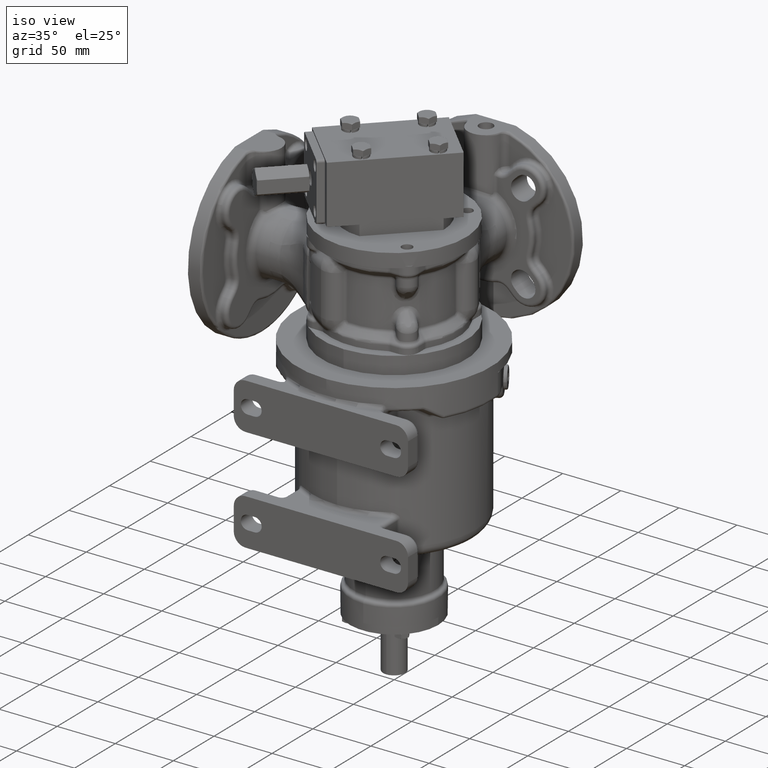
[diagram: clean part render]
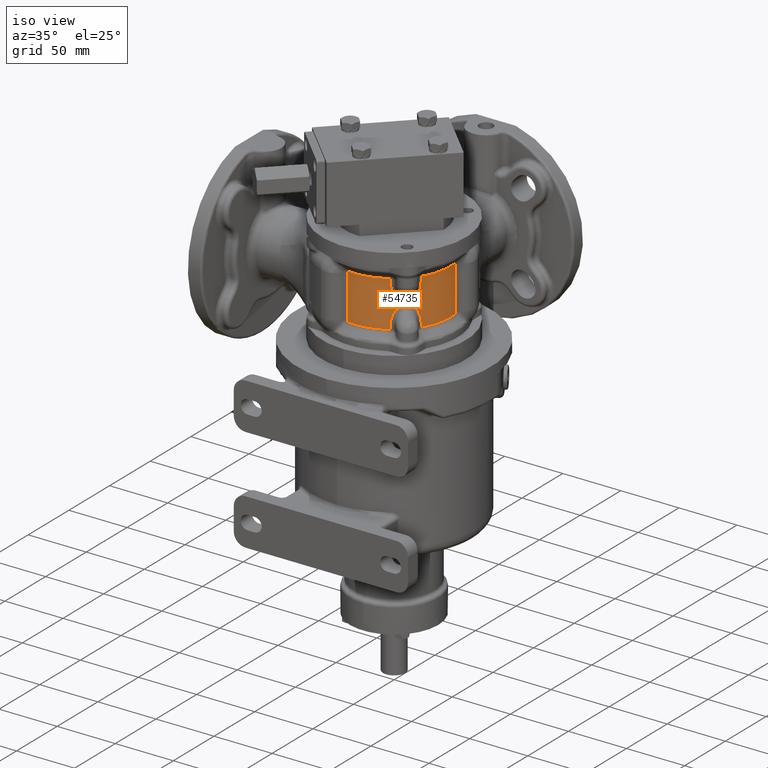
[diagram: same view with one face highlighted and labeled with its STEP entity id]
A machine part, iso view. The second image highlights one B-rep face of the part: STEP entity #54735.
In plain terms, the highlighted cylindrical surface (partial cylindrical patch) has radius 48.5 mm, axis along (0, 0, 1).
Its self-contained STEP definition (entity closure, byte-faithful):
#7593=DIRECTION('',(-2.848150326348E-10,1.366210651883E-10,1.E0));
#7594=VECTOR('',#7593,3.700004648874E1);
#7595=CARTESIAN_POINT('',(-6.274343029930E0,-4.809243818960E1,
1.564999769728E2));
#7596=LINE('',#7595,#7594);
#7597=CARTESIAN_POINT('',(-6.274343040468E0,-4.809243818454E1,
1.935000234615E2));
#7598=CARTESIAN_POINT('',(-6.274343434639E0,-4.809243814360E1,
1.935234164929E2));
#7599=CARTESIAN_POINT('',(-6.274444725868E0,-4.809242506489E1,
1.935701433103E2));
#7600=CARTESIAN_POINT('',(-6.274897230966E0,-4.809236590575E1,
1.936403227666E2));
#7601=CARTESIAN_POINT('',(-6.275394628399E0,-4.809230119169E1,
1.936866346259E2));
#7602=CARTESIAN_POINT('',(-6.275690753971E0,-4.809226256047E1,
1.937097164633E2));
#7604=CARTESIAN_POINT('',(-6.275690753971E0,-4.809226256047E1,
1.937097164633E2));
#7605=CARTESIAN_POINT('',(-6.276178012541E0,-4.809219897680E1,
1.937477024269E2));
#7606=CARTESIAN_POINT('',(-6.274913765812E0,-4.809236382010E1,
1.938212918905E2));
#7607=CARTESIAN_POINT('',(-6.266985414949E0,-4.809339801570E1,
1.939246876681E2));
#7608=CARTESIAN_POINT('',(-6.253731021626E0,-4.809512376490E1,
1.940205849439E2));
#7609=CARTESIAN_POINT('',(-6.235874767842E0,-4.809744275610E1,
1.941088701734E2));
#7610=CARTESIAN_POINT('',(-6.214096438585E0,-4.810026187533E1,
1.941896532592E2));
#7611=CARTESIAN_POINT('',(-6.188998400640E0,-4.810349818535E1,
1.942632430042E2));
#7612=CARTESIAN_POINT('',(-6.161108300931E0,-4.810707881114E1,
1.943300102845E2));
#7613=CARTESIAN_POINT('',(-6.130865068600E0,-4.811094288226E1,
1.943903937344E2));
#7614=CARTESIAN_POINT('',(-6.098626018523E0,-4.811504060554E1,
1.944448438467E2));
#7615=CARTESIAN_POINT('',(-6.064667471575E0,-4.811933309037E1,
1.944938049870E2));
#7616=CARTESIAN_POINT('',(-6.029205523263E0,-4.812378957644E1,
1.945376828935E2));
#7617=CARTESIAN_POINT('',(-5.992399836210E0,-4.812838682880E1,
1.945768497978E2));
#7618=CARTESIAN_POINT('',(-5.954338375685E0,-4.813311085343E1,
1.946116474166E2));
#7619=CARTESIAN_POINT('',(-5.915076939782E0,-4.813795178669E1,
1.946423587458E2));
#7620=CARTESIAN_POINT('',(-5.874613085224E0,-4.814290697518E1,
1.946692293826E2));
#7621=CARTESIAN_POINT('',(-5.832891916712E0,-4.814798000728E1,
1.946924511634E2));
#7622=CARTESIAN_POINT('',(-5.789885508175E0,-4.815317092276E1,
1.947121334603E2));
#7623=CARTESIAN_POINT('',(-5.745548080343E0,-4.815848174638E1,
1.947283375297E2));
#7624=CARTESIAN_POINT('',(-5.699661245201E0,-4.816393463038E1,
1.947411217633E2));
#7625=CARTESIAN_POINT('',(-5.652124219911E0,-4.816953686112E1,
1.947504145396E2));
#7626=CARTESIAN_POINT('',(-5.603045415015E0,-4.817527082022E1,
1.947560775495E2));
#7627=CARTESIAN_POINT('',(-5.569433165751E0,-4.817916259527E1,
1.947573590433E2));
#7628=CARTESIAN_POINT('',(-5.552392439036E0,-4.818112636918E1,
1.947573591672E2));
#7630=CARTESIAN_POINT('',(0.E0,-1.679623939384E-14,1.947573593129E2));
#7631=DIRECTION('',(0.E0,0.E0,1.E0));
#7632=DIRECTION('',(-1.144823183306E-1,-9.934252859625E-1,0.E0));
#7633=AXIS2_PLACEMENT_3D('',#7630,#7631,#7632);
#7635=CARTESIAN_POINT('',(2.545965498391E1,-4.128021279137E1,1.947573592865E2));
#7636=CARTESIAN_POINT('',(2.547614764940E1,-4.127004090643E1,1.947573592826E2));
#7637=CARTESIAN_POINT('',(2.550937940360E1,-4.124951789783E1,1.947564723350E2));
#7638=CARTESIAN_POINT('',(2.556003047431E1,-4.121815184109E1,1.947523899943E2));
#7639=CARTESIAN_POINT('',(2.559420020860E1,-4.119693344950E1,1.947477906430E2));
#7640=CARTESIAN_POINT('',(2.561139445780E1,-4.118624131827E1,1.947450084340E2));
#7642=DIRECTION('',(-5.588375425731E-8,-7.049448077059E-8,-1.E0));
#7643=VECTOR('',#7642,3.950551257222E0);
#7644=CARTESIAN_POINT('',(2.561139445780E1,-4.118624131827E1,1.947450084340E2));
#7645=LINE('',#7644,#7643);
#7646=CARTESIAN_POINT('',(2.561139423703E1,-4.118624159676E1,1.907944571768E2));
#7647=CARTESIAN_POINT('',(2.561139421181E1,-4.118624159706E1,1.907341618462E2));
#7648=CARTESIAN_POINT('',(2.561213257774E1,-4.118578227763E1,1.906136386817E2));
#7649=CARTESIAN_POINT('',(2.561545445615E1,-4.118371648193E1,1.904330338751E2));
#7650=CARTESIAN_POINT('',(2.561914153475E1,-4.118142291603E1,1.903127957322E2));
#7651=CARTESIAN_POINT('',(2.562135280985E1,-4.118004711256E1,1.902527141374E2));
#7653=CARTESIAN_POINT('',(2.562135280985E1,-4.118004711256E1,1.902527141374E2));
#7654=CARTESIAN_POINT('',(2.562990374478E1,-4.117472697665E1,1.900203918733E2));
#7655=CARTESIAN_POINT('',(2.565337548488E1,-4.116011684578E1,1.895594212240E2));
#7656=CARTESIAN_POINT('',(2.570727333933E1,-4.112648676577E1,1.888780831152E2));
#7657=CARTESIAN_POINT('',(2.577917403435E1,-4.108147009508E1,1.882094814310E2));
#7658=CARTESIAN_POINT('',(2.586834712201E1,-4.102539490419E1,1.875551615221E2));
#7659=CARTESIAN_POINT('',(2.597392670134E1,-4.095865143461E1,1.869168875961E2));
#7660=CARTESIAN_POINT('',(2.609491633409E1,-4.088169583771E1,1.862963828406E2));
#7661=CARTESIAN_POINT('',(2.623034226935E1,-4.079495888049E1,1.856947307082E2));
#7662=CARTESIAN_POINT('',(2.637920635193E1,-4.069888041589E1,1.851127322534E2));
#7663=CARTESIAN_POINT('',(2.654049519610E1,-4.059390835528E1,1.845511607600E2));
#7664=CARTESIAN_POINT('',(2.671316229859E1,-4.048051523456E1,1.840105959634E2));
#7665=CARTESIAN_POINT('',(2.689622125991E1,-4.035914112212E1,1.834913862057E2));
#7666=CARTESIAN_POINT('',(2.708868693629E1,-4.023023494348E1,1.829937708830E2));
#7667=CARTESIAN_POINT('',(2.728960464926E1,-4.009423819389E1,1.825178610275E2));
#7668=CARTESIAN_POINT('',(2.749806615702E1,-3.995157588790E1,1.820636682844E2));
#7669=CARTESIAN_POINT('',(2.771318935103E1,-3.980267189216E1,1.816310907621E2));
#7670=CARTESIAN_POINT('',(2.793415263727E1,-3.964792621447E1,1.812199721212E2));
#7671=CARTESIAN_POINT('',(2.816016210982E1,-3.948773824612E1,1.808300728885E2));
#7672=CARTESIAN_POINT('',(2.839048615157E1,-3.932248267440E1,1.804611062605E2));
#7673=CARTESIAN_POINT('',(2.862442685201E1,-3.915252942295E1,1.801127467996E2));
#7674=CARTESIAN_POINT('',(2.886134341625E1,-3.897822643533E1,1.797846166740E2));
#7675=CARTESIAN_POINT('',(2.910063293964E1,-3.879991279568E1,1.794763367304E2));
#7676=CARTESIAN_POINT('',(2.934174271775E1,-3.861790885660E1,1.791874795180E2));
#7677=CARTESIAN_POINT('',(2.958416252438E1,-3.843252073297E1,1.789176282629E2));
#7678=CARTESIAN_POINT('',(2.982742056005E1,-3.824404237136E1,1.786663415016E2));
#7679=CARTESIAN_POINT('',(3.007109519077E1,-3.805274503114E1,1.784331805882E2));
#7680=CARTESIAN_POINT('',(3.031478811077E1,-3.785889697735E1,1.782177102916E2));
#7681=CARTESIAN_POINT('',(3.055815684157E1,-3.766273643266E1,1.780194918400E2));
#7682=CARTESIAN_POINT('',(3.080087422965E1,-3.746450243242E1,1.778381043686E2));
#7683=CARTESIAN_POINT('',(3.104266208006E1,-3.726440647640E1,1.776731290530E2));
#7684=CARTESIAN_POINT('',(3.128326049506E1,-3.706265601209E1,1.775241696931E2));
#7685=CARTESIAN_POINT('',(3.152244045545E1,-3.685944315726E1,1.773908380090E2));
#7686=CARTESIAN_POINT('',(3.176000747516E1,-3.665493991613E1,1.772727724099E2));
#7687=CARTESIAN_POINT('',(3.199578020436E1,-3.644931543663E1,1.771696166434E2));
#7688=CARTESIAN_POINT('',(3.222962100706E1,-3.624270803194E1,1.770810534653E2));
#7689=CARTESIAN_POINT('',(3.246135111580E1,-3.603529934057E1,1.770067858054E2));
#7690=CARTESIAN_POINT('',(3.269085079190E1,-3.582722624299E1,1.769465376678E2));
#7691=CARTESIAN_POINT('',(3.291812130954E1,-3.561851886088E1,1.769000302975E2));
#7692=CARTESIAN_POINT('',(3.314299156906E1,-3.540936851576E1,1.768670611974E2));
#7693=CARTESIAN_POINT('',(3.336521218247E1,-3.520004900966E1,1.768474597391E2));
#7694=CARTESIAN_POINT('',(3.351134922882E1,-3.506065596799E1,1.768431459479E2));
#7695=CARTESIAN_POINT('',(3.358394003604E1,-3.499098414902E1,1.768431457487E2));
#7697=CARTESIAN_POINT('',(0.E0,-1.679623939384E-14,1.768431457505E2));
#7698=DIRECTION('',(0.E0,0.E0,1.E0));
#7699=DIRECTION('',(6.924523718680E-1,-7.214635906921E-1,0.E0));
#7700=AXIS2_PLACEMENT_3D('',#7697,#7698,#7699);
#7702=CARTESIAN_POINT('',(3.499098415070E1,-3.358394003635E1,1.768431457418E2));
#7703=CARTESIAN_POINT('',(3.506064353759E1,-3.351136218196E1,1.768431459500E2));
#7704=CARTESIAN_POINT('',(3.520001591858E1,-3.336524698527E1,1.768474588718E2));
#7705=CARTESIAN_POINT('',(3.540931734267E1,-3.314304617871E1,1.768670546100E2));
#7706=CARTESIAN_POINT('',(3.561846069809E1,-3.291818425522E1,1.769000198394E2));
#7707=CARTESIAN_POINT('',(3.582717695229E1,-3.269090484421E1,1.769465240929E2));
#7708=CARTESIAN_POINT('',(3.603525025822E1,-3.246140557619E1,1.770067712896E2));
#7709=CARTESIAN_POINT('',(3.624265291046E1,-3.222968296825E1,1.770810312636E2));
#7710=CARTESIAN_POINT('',(3.644925938618E1,-3.199584406449E1,1.771695912892E2));
#7711=CARTESIAN_POINT('',(3.665488725161E1,-3.176006827253E1,1.772727439625E2));
#7712=CARTESIAN_POINT('',(3.685939253106E1,-3.152249964995E1,1.773908064347E2));
#7713=CARTESIAN_POINT('',(3.706260544802E1,-3.128332041652E1,1.775241353365E2));
#7714=CARTESIAN_POINT('',(3.726436062589E1,-3.104271712156E1,1.776730920548E2));
#7715=CARTESIAN_POINT('',(3.746445471450E1,-3.080093228204E1,1.778380642604E2));
#7716=CARTESIAN_POINT('',(3.766269487225E1,-3.055820807666E1,1.780194504677E2));
#7717=CARTESIAN_POINT('',(3.785885403356E1,-3.031484174754E1,1.782176661796E2));
#7718=CARTESIAN_POINT('',(3.805270745425E1,-3.007114275981E1,1.784331352445E2));
#7719=CARTESIAN_POINT('',(3.824400502791E1,-2.982746844409E1,1.786662956986E2));
#7720=CARTESIAN_POINT('',(3.843248680498E1,-2.958420662028E1,1.789175786036E2));
#7721=CARTESIAN_POINT('',(3.861787742337E1,-2.934178409433E1,1.791874344475E2));
#7722=CARTESIAN_POINT('',(3.879988303331E1,-2.910067263963E1,1.794762840818E2));
#7723=CARTESIAN_POINT('',(3.897820057681E1,-2.886137834932E1,1.797845728673E2));
#7724=CARTESIAN_POINT('',(3.915250444730E1,-2.862446102978E1,1.801126951479E2));
#7725=CARTESIAN_POINT('',(3.932246220906E1,-2.839051450884E1,1.804610630602E2));
#7726=CARTESIAN_POINT('',(3.948771823802E1,-2.816019018346E1,1.808300270537E2));
#7727=CARTESIAN_POINT('',(3.964791136883E1,-2.793417371861E1,1.812199303425E2));
#7728=CARTESIAN_POINT('',(3.980265655722E1,-2.771321139220E1,1.816310536754E2));
#7729=CARTESIAN_POINT('',(3.995156646383E1,-2.749807985896E1,1.820636307766E2));
#7730=CARTESIAN_POINT('',(4.009422713827E1,-2.728962090505E1,1.825178327963E2));
#7731=CARTESIAN_POINT('',(4.023023048850E1,-2.708869356841E1,1.829937448249E2));
#7732=CARTESIAN_POINT('',(4.035913478545E1,-2.689623076612E1,1.834913680947E2));
#7733=CARTESIAN_POINT('',(4.048051270220E1,-2.671316615610E1,1.840105787587E2));
#7734=CARTESIAN_POINT('',(4.059390800394E1,-2.654049574211E1,1.845511593736E2));
#7735=CARTESIAN_POINT('',(4.069888237191E1,-2.637920334112E1,1.851127447041E2));
#7736=CARTESIAN_POINT('',(4.079496036115E1,-2.623033995452E1,1.856947336471E2));
#7737=CARTESIAN_POINT('',(4.088169591598E1,-2.609491623066E1,1.862963883201E2));
#7738=CARTESIAN_POINT('',(4.095866044806E1,-2.597391250099E1,1.869169540404E2));
#7739=CARTESIAN_POINT('',(4.102540043937E1,-2.586833833040E1,1.875552303079E2));
#7740=CARTESIAN_POINT('',(4.108147385272E1,-2.577916804169E1,1.882095207879E2));
#7741=CARTESIAN_POINT('',(4.112648712502E1,-2.570727276091E1,1.888780992761E2));
#7742=CARTESIAN_POINT('',(4.116011702646E1,-2.565337519317E1,1.895594189959E2));
#7743=CARTESIAN_POINT('',(4.117472691393E1,-2.562990385116E1,1.900203896039E2));
#7744=CARTESIAN_POINT('',(4.118004711281E1,-2.562135280946E1,1.902527141481E2));
#7746=CARTESIAN_POINT('',(4.118004711281E1,-2.562135280946E1,1.902527141481E2));
#7747=CARTESIAN_POINT('',(4.118142291417E1,-2.561914153787E1,1.903127956533E2));
#7748=CARTESIAN_POINT('',(4.118371647761E1,-2.561545446280E1,1.904330336698E2));
#7749=CARTESIAN_POINT('',(4.118578227243E1,-2.561213258698E1,1.906136383149E2));
#7750=CARTESIAN_POINT('',(4.118624159460E1,-2.561139421388E1,1.907341616504E2));
#7751=CARTESIAN_POINT('',(4.118624159423E1,-2.561139423903E1,1.907944571146E2));
#7753=DIRECTION('',(-6.985391285525E-8,-5.537608814512E-8,1.E0));
#7754=VECTOR('',#7753,3.950551336463E0);
#7755=CARTESIAN_POINT('',(4.118624159423E1,-2.561139423903E1,1.907944571146E2));
#7756=LINE('',#7755,#7754);
#7757=CARTESIAN_POINT('',(4.118624131827E1,-2.561139445780E1,1.947450084510E2));
#7758=CARTESIAN_POINT('',(4.119693358090E1,-2.559419999731E1,1.947477906963E2));
#7759=CARTESIAN_POINT('',(4.121815215150E1,-2.556002997389E1,1.947523900715E2));
#7760=CARTESIAN_POINT('',(4.124951817085E1,-2.550937896193E1,1.947564723879E2));
#7761=CARTESIAN_POINT('',(4.127004105009E1,-2.547614741653E1,1.947573593029E2));
#7762=CARTESIAN_POINT('',(4.128021283620E1,-2.545965491121E1,1.947573593063E2));
#7764=CARTESIAN_POINT('',(0.E0,-1.679623939384E-14,1.947573593129E2));
#7765=DIRECTION('',(0.E0,0.E0,1.E0));
#7766=DIRECTION('',(8.511384089938E-1,-5.249413383755E-1,0.E0));
#7767=AXIS2_PLACEMENT_3D('',#7764,#7765,#7766);
#7769=CARTESIAN_POINT('',(4.818112644927E1,5.552391744018E0,1.947573593109E2));
#7770=CARTESIAN_POINT('',(4.817916170077E1,5.569440930252E0,1.947573591937E2));
#7771=CARTESIAN_POINT('',(4.817526837130E1,5.603066512215E0,1.947560766871E2));
#7772=CARTESIAN_POINT('',(4.816953341443E1,5.652153604266E0,1.947504104081E2));
#7773=CARTESIAN_POINT('',(4.816393121576E1,5.699690085187E0,1.947411151316E2));
#7774=CARTESIAN_POINT('',(4.815847906687E1,5.745570530808E0,1.947283303740E2));
#7775=CARTESIAN_POINT('',(4.815316806712E1,5.789909266608E0,1.947121240229E2));
#7776=CARTESIAN_POINT('',(4.814797693735E1,5.832917253601E0,1.946924384541E2));
#7777=CARTESIAN_POINT('',(4.814290431706E1,5.874634861792E0,1.946692159828E2));
#7778=CARTESIAN_POINT('',(4.813794925440E1,5.915097545714E0,1.946423440087E2));
#7779=CARTESIAN_POINT('',(4.813310850979E1,5.954357317733E0,1.946116311637E2));
#7780=CARTESIAN_POINT('',(4.812838460414E1,5.992417700909E0,1.945768321016E2));
#7781=CARTESIAN_POINT('',(4.812378758171E1,6.029221440045E0,1.945376643380E2));
#7782=CARTESIAN_POINT('',(4.811933135698E1,6.064681221394E0,1.944937861005E2));
#7783=CARTESIAN_POINT('',(4.811503907348E1,6.098638102036E0,1.944448245192E2));
#7784=CARTESIAN_POINT('',(4.811094163192E1,6.130874876613E0,1.943903748918E2));
#7785=CARTESIAN_POINT('',(4.810707778907E1,6.161116278743E0,1.943299917088E2));
#7786=CARTESIAN_POINT('',(4.810349739793E1,6.189004517536E0,1.942632253409E2));
#7787=CARTESIAN_POINT('',(4.810026133969E1,6.214100583679E0,1.941896376140E2));
#7788=CARTESIAN_POINT('',(4.809744242541E1,6.235877312277E0,1.941088565577E2));
#7789=CARTESIAN_POINT('',(4.809512361469E1,6.253732192835E0,1.940205740368E2));
#7790=CARTESIAN_POINT('',(4.809339800045E1,6.266985467996E0,1.939246811768E2));
#7791=CARTESIAN_POINT('',(4.809236390451E1,6.274913355756E0,1.938212877003E2));
#7792=CARTESIAN_POINT('',(4.809219894661E1,6.276177733652E0,1.937477011384E2));
#7793=CARTESIAN_POINT('',(4.809226252051E1,6.275690549729E0,1.937097167370E2));
#7795=CARTESIAN_POINT('',(4.809226252051E1,6.275690549729E0,1.937097167370E2));
#7796=CARTESIAN_POINT('',(4.809230139918E1,6.275392574920E0,1.936864892502E2));
#7797=CARTESIAN_POINT('',(4.809236630479E1,6.274894392201E0,1.936399849995E2));
#7798=CARTESIAN_POINT('',(4.809242512311E1,6.274444205979E0,1.935699635736E2));
#7799=CARTESIAN_POINT('',(4.809243814627E1,6.274343439559E0,1.935233402463E2));
#7800=CARTESIAN_POINT('',(4.809243818454E1,6.274343040468E0,1.935000234615E2));
#7802=DIRECTION('',(1.366210651883E-10,-2.848138804049E-10,-1.E0));
#7803=VECTOR('',#7802,3.700004648873E1);
#7804=CARTESIAN_POINT('',(4.809243818454E1,6.274343040468E0,1.935000234615E2));
#7805=LINE('',#7804,#7803);
#7806=CARTESIAN_POINT('',(4.809243818960E1,6.274343029930E0,1.564999769728E2));
#7807=CARTESIAN_POINT('',(4.809243814916E1,6.274343416127E0,1.564765846114E2));
#7808=CARTESIAN_POINT('',(4.809242507031E1,6.274444673288E0,1.564298586391E2));
#7809=CARTESIAN_POINT('',(4.809236591395E1,6.274897170544E0,1.563596781503E2));
#7810=CARTESIAN_POINT('',(4.809230119985E1,6.275394567445E0,1.563133657002E2));
#7811=CARTESIAN_POINT('',(4.809226256833E1,6.275690696447E0,1.562902834561E2));
#7813=CARTESIAN_POINT('',(4.809226256833E1,6.275690696447E0,1.562902834561E2));
#7814=CARTESIAN_POINT('',(4.809219898506E1,6.276177951921E0,1.562522974812E2));
#7815=CARTESIAN_POINT('',(4.809236382862E1,6.274913699244E0,1.561787080016E2));
#7816=CARTESIAN_POINT('',(4.809339802554E1,6.266985339781E0,1.560753122317E2));
#7817=CARTESIAN_POINT('',(4.809512377558E1,6.253730939420E0,1.559794149581E2));
#7818=CARTESIAN_POINT('',(4.809744276742E1,6.235874680561E0,1.558911297363E2));
#7819=CARTESIAN_POINT('',(4.810026188691E1,6.214096348977E0,1.558103466629E2));
#7820=CARTESIAN_POINT('',(4.810349819705E1,6.188998309684E0,1.557367569281E2));
#7821=CARTESIAN_POINT('',(4.810707882272E1,6.161108210453E0,1.556699896593E2));
#7822=CARTESIAN_POINT('',(4.811094289358E1,6.130864979748E0,1.556096062200E2));
#7823=CARTESIAN_POINT('',(4.811504061648E1,6.098625932156E0,1.555551561174E2));
#7824=CARTESIAN_POINT('',(4.811933310085E1,6.064667388450E0,1.555061949858E2));
#7825=CARTESIAN_POINT('',(4.812378958638E1,6.029205443903E0,1.554623170869E2));
#7826=CARTESIAN_POINT('',(4.812838683817E1,5.992399760961E0,1.554231501891E2));
#7827=CARTESIAN_POINT('',(4.813311086221E1,5.954338304726E0,1.553883525757E2));
#7828=CARTESIAN_POINT('',(4.813795179485E1,5.915076873407E0,1.553576412511E2));
#7829=CARTESIAN_POINT('',(4.814290698270E1,5.874613023586E0,1.553307706178E2));
#7830=CARTESIAN_POINT('',(4.814798001424E1,5.832891859274E0,1.553075488395E2));
#7831=CARTESIAN_POINT('',(4.815317092911E1,5.789885455349E0,1.552878665445E2));
#7832=CARTESIAN_POINT('',(4.815848175192E1,5.745548033880E0,1.552716624766E2));
#7833=CARTESIAN_POINT('',(4.816393463541E1,5.699661202745E0,1.552588782431E2));
#7834=CARTESIAN_POINT('',(4.816953686622E1,5.652124176434E0,1.552495854657E2));
#7835=CARTESIAN_POINT('',(4.817527082591E1,5.603045366120E0,1.552439224535E2));
#7836=CARTESIAN_POINT('',(4.817916260168E1,5.569433110360E0,1.552426409577E2));
#7837=CARTESIAN_POINT('',(4.818112637602E1,5.552392379671E0,1.552426408337E2));
#7839=CARTESIAN_POINT('',(0.E0,-1.679623939384E-14,1.552426406871E2));
#7840=DIRECTION('',(0.E0,0.E0,-1.E0));
#7841=DIRECTION('',(9.934252861035E-1,1.144823171066E-1,0.E0));
#7842=AXIS2_PLACEMENT_3D('',#7839,#7840,#7841);
#7844=CARTESIAN_POINT('',(4.128021279155E1,-2.545965498361E1,1.552426407135E2));
#7845=CARTESIAN_POINT('',(4.127004090700E1,-2.547614764847E1,1.552426407174E2));
#7846=CARTESIAN_POINT('',(4.124951789892E1,-2.550937940183E1,1.552435276648E2));
#7847=CARTESIAN_POINT('',(4.121815184233E1,-2.556003047230E1,1.552476100054E2));
#7848=CARTESIAN_POINT('',(4.119693345003E1,-2.559420020775E1,1.552522093568E2));
#7849=CARTESIAN_POINT('',(4.118624131827E1,-2.561139445780E1,1.552549915659E2));
#7851=DIRECTION('',(7.050511587901E-8,5.589217349335E-8,1.E0));
#7852=VECTOR('',#7851,3.950551255109E0);
#7853=CARTESIAN_POINT('',(4.118624131827E1,-2.561139445780E1,1.552549915659E2));
#7854=LINE('',#7853,#7852);
#7855=CARTESIAN_POINT('',(4.118624159681E1,-2.561139423699E1,1.592055428210E2));
#7856=CARTESIAN_POINT('',(4.118624159710E1,-2.561139421177E1,1.592658381579E2));
#7857=CARTESIAN_POINT('',(4.118578227758E1,-2.561213257780E1,1.593863613307E2));
#7858=CARTESIAN_POINT('',(4.118371648172E1,-2.561545445649E1,1.595669661378E2));
#7859=CARTESIAN_POINT('',(4.118142291590E1,-2.561914153495E1,1.596872042731E2));
#7860=CARTESIAN_POINT('',(4.118004711257E1,-2.562135280984E1,1.597472858621E2));
#7862=CARTESIAN_POINT('',(4.118004711257E1,-2.562135280984E1,1.597472858621E2));
#7863=CARTESIAN_POINT('',(4.117472697669E1,-2.562990374471E1,1.599796081254E2));
#7864=CARTESIAN_POINT('',(4.116011684591E1,-2.565337548468E1,1.604405787648E2));
#7865=CARTESIAN_POINT('',(4.112648676897E1,-2.570727333421E1,1.611219168279E2));
#7866=CARTESIAN_POINT('',(4.108147010318E1,-2.577917402142E1,1.617905184555E2));
#7867=CARTESIAN_POINT('',(4.102539492001E1,-2.586834709690E1,1.624448383099E2));
#7868=CARTESIAN_POINT('',(4.095865145967E1,-2.597392666178E1,1.630831121797E2));
#7869=CARTESIAN_POINT('',(4.088169587627E1,-2.609491627363E1,1.637036168692E2));
#7870=CARTESIAN_POINT('',(4.079495893327E1,-2.623034218721E1,1.643052689483E2));
#7871=CARTESIAN_POINT('',(4.069888048278E1,-2.637920624867E1,1.648872673634E2));
#7872=CARTESIAN_POINT('',(4.059390843755E1,-2.654049507020E1,1.654488388230E2));
#7873=CARTESIAN_POINT('',(4.048051533367E1,-2.671316214831E1,1.659894035890E2));
#7874=CARTESIAN_POINT('',(4.035914124368E1,-2.689622107737E1,1.665086133005E2));
#7875=CARTESIAN_POINT('',(4.023023509121E1,-2.708868671676E1,1.670062285728E2));
#7876=CARTESIAN_POINT('',(4.009423836189E1,-2.728960440234E1,1.674821384104E2));
#7877=CARTESIAN_POINT('',(3.995157607135E1,-2.749806589041E1,1.679363311540E2));
#7878=CARTESIAN_POINT('',(3.980267209306E1,-2.771318906239E1,1.683689086788E2));
#7879=CARTESIAN_POINT('',(3.964792643504E1,-2.793415232409E1,1.687800273203E2));
#7880=CARTESIAN_POINT('',(3.948773849083E1,-2.816016176652E1,1.691699265444E2));
#7881=CARTESIAN_POINT('',(3.932248295658E1,-2.839048576050E1,1.695388931407E2));
#7882=CARTESIAN_POINT('',(3.915252974877E1,-2.862442640615E1,1.698872525643E2));
#7883=CARTESIAN_POINT('',(3.897822679241E1,-2.886134293389E1,1.702153826794E2));
#7884=CARTESIAN_POINT('',(3.879991316877E1,-2.910063244218E1,1.705236626463E2));
#7885=CARTESIAN_POINT('',(3.861790922960E1,-2.934174222686E1,1.708125199110E2));
#7886=CARTESIAN_POINT('',(3.843252110824E1,-2.958416203684E1,1.710823712109E2));
#7887=CARTESIAN_POINT('',(3.824404276219E1,-2.982742005885E1,1.713336580019E2));
#7888=CARTESIAN_POINT('',(3.805274544281E1,-3.007109466973E1,1.715668189409E2));
#7889=CARTESIAN_POINT('',(3.785889741486E1,-3.031478756424E1,1.717822892581E2));
#7890=CARTESIAN_POINT('',(3.766273690141E1,-3.055815626367E1,1.719805077277E2));
#7891=CARTESIAN_POINT('',(3.746450293586E1,-3.080087361712E1,1.721618952161E2));
#7892=CARTESIAN_POINT('',(3.726440701752E1,-3.104266143031E1,1.723268705497E2));
#7893=CARTESIAN_POINT('',(3.706265658655E1,-3.128325981433E1,1.724758299327E2));
#7894=CARTESIAN_POINT('',(3.685944376484E1,-3.152243974482E1,1.726091616425E2));
#7895=CARTESIAN_POINT('',(3.665494056936E1,-3.176000672102E1,1.727272272621E2));
#7896=CARTESIAN_POINT('',(3.644931613307E1,-3.199577941087E1,1.728303830553E2));
#7897=CARTESIAN_POINT('',(3.624270874457E1,-3.222962020564E1,1.729189462727E2));
#7898=CARTESIAN_POINT('',(3.603530008718E1,-3.246135028672E1,1.729932139679E2));
#7899=CARTESIAN_POINT('',(3.582722704107E1,-3.269084991726E1,1.730534621381E2));
#7900=CARTESIAN_POINT('',(3.561851957774E1,-3.291812053470E1,1.730999695773E2));
#7901=CARTESIAN_POINT('',(3.540936899498E1,-3.314299105832E1,1.731329387504E2));
#7902=CARTESIAN_POINT('',(3.520004920436E1,-3.336521197838E1,1.731525402558E2));
#7903=CARTESIAN_POINT('',(3.506065602662E1,-3.351134916733E1,1.731568540519E2));
#7904=CARTESIAN_POINT('',(3.499098414639E1,-3.358394003832E1,1.731568542504E2));
#7906=CARTESIAN_POINT('',(0.E0,-1.679623939384E-14,1.731568542495E2));
#7907=DIRECTION('',(0.E0,0.E0,-1.E0));
#7908=DIRECTION('',(7.214635906425E-1,-6.924523719197E-1,0.E0));
#7909=AXIS2_PLACEMENT_3D('',#7906,#7907,#7908);
#7911=CARTESIAN_POINT('',(3.358394003659E1,-3.499098415085E1,1.731568542594E2));
#7912=CARTESIAN_POINT('',(3.351136218395E1,-3.506064353602E1,1.731568540512E2));
#7913=CARTESIAN_POINT('',(3.336524698854E1,-3.520001591533E1,1.731525411303E2));
#7914=CARTESIAN_POINT('',(3.314304617592E1,-3.540931734535E1,1.731329453926E2));
#7915=CARTESIAN_POINT('',(3.291818424452E1,-3.561846070799E1,1.730999801615E2));
#7916=CARTESIAN_POINT('',(3.269090482920E1,-3.582717696599E1,1.730534759061E2));
#7917=CARTESIAN_POINT('',(3.246140556263E1,-3.603525027042E1,1.729932287089E2));
#7918=CARTESIAN_POINT('',(3.222968295825E1,-3.624265291934E1,1.729189687349E2));
#7919=CARTESIAN_POINT('',(3.199584405840E1,-3.644925939151E1,1.728304087099E2));
#7920=CARTESIAN_POINT('',(3.176006826903E1,-3.665488725464E1,1.727272560366E2));
#7921=CARTESIAN_POINT('',(3.152249964654E1,-3.685939253399E1,1.726091935630E2));
#7922=CARTESIAN_POINT('',(3.128332040968E1,-3.706260545382E1,1.724758646583E2));
#7923=CARTESIAN_POINT('',(3.104271711038E1,-3.726436063521E1,1.723269079361E2));
#7924=CARTESIAN_POINT('',(3.080093226807E1,-3.746445472599E1,1.721619357275E2));
#7925=CARTESIAN_POINT('',(3.055820806019E1,-3.766269488562E1,1.719805495174E2));
#7926=CARTESIAN_POINT('',(3.031484172835E1,-3.785885404894E1,1.717823338023E2));
#7927=CARTESIAN_POINT('',(3.007114273881E1,-3.805270747085E1,1.715668647348E2));
#7928=CARTESIAN_POINT('',(2.982746842251E1,-3.824400504475E1,1.713337042791E2));
#7929=CARTESIAN_POINT('',(2.958420659956E1,-3.843248682092E1,1.710824213743E2));
#7930=CARTESIAN_POINT('',(2.934178407615E1,-3.861787743717E1,1.708125655322E2));
#7931=CARTESIAN_POINT('',(2.910067262632E1,-3.879988304327E1,1.705237159019E2));
#7932=CARTESIAN_POINT('',(2.886137833978E1,-3.897820058387E1,1.702154271205E2));
#7933=CARTESIAN_POINT('',(2.862446102041E1,-3.915250445415E1,1.698873048387E2));
#7934=CARTESIAN_POINT('',(2.839051449716E1,-3.932246221751E1,1.695389369209E2));
#7935=CARTESIAN_POINT('',(2.816019016791E1,-3.948771824912E1,1.691699729200E2));
#7936=CARTESIAN_POINT('',(2.793417370257E1,-3.964791138011E1,1.687800696288E2));
#7937=CARTESIAN_POINT('',(2.771321137974E1,-3.980265656588E1,1.683689463008E2));
#7938=CARTESIAN_POINT('',(2.749807984916E1,-3.995156647057E1,1.679363692031E2));
#7939=CARTESIAN_POINT('',(2.728962089601E1,-4.009422714442E1,1.674821671828E2));
#7940=CARTESIAN_POINT('',(2.708869355815E1,-4.023023049541E1,1.670062551495E2));
#7941=CARTESIAN_POINT('',(2.689623075487E1,-4.035913479295E1,1.665086318747E2));
#7942=CARTESIAN_POINT('',(2.671316614631E1,-4.048051270866E1,1.659894212119E2));
#7943=CARTESIAN_POINT('',(2.654049573391E1,-4.059390800930E1,1.654488405998E2));
#7944=CARTESIAN_POINT('',(2.637920333388E1,-4.069888237661E1,1.648872552691E2));
#7945=CARTESIAN_POINT('',(2.623033994779E1,-4.079496036548E1,1.643052663244E2));
#7946=CARTESIAN_POINT('',(2.609491622431E1,-4.088169592004E1,1.637036116494E2));
#7947=CARTESIAN_POINT('',(2.597391249509E1,-4.095866045180E1,1.630830459273E2));
#7948=CARTESIAN_POINT('',(2.586833832588E1,-4.102540044222E1,1.624447696612E2));
#7949=CARTESIAN_POINT('',(2.577916803794E1,-4.108147385507E1,1.617904791815E2));
#7950=CARTESIAN_POINT('',(2.570727275826E1,-4.112648712668E1,1.611219006942E2));
#7951=CARTESIAN_POINT('',(2.565337519178E1,-4.116011702732E1,1.604405809814E2));
#7952=CARTESIAN_POINT('',(2.562990385085E1,-4.117472691413E1,1.599796103875E2));
#7953=CARTESIAN_POINT('',(2.562135280947E1,-4.118004711280E1,1.597472858521E2));
#7955=CARTESIAN_POINT('',(2.562135280947E1,-4.118004711280E1,1.597472858521E2));
#7956=CARTESIAN_POINT('',(2.561914153797E1,-4.118142291410E1,1.596872043494E2));
#7957=CARTESIAN_POINT('',(2.561545446295E1,-4.118371647752E1,1.595669663361E2));
#7958=CARTESIAN_POINT('',(2.561213258695E1,-4.118578227244E1,1.593863616892E2));
#7959=CARTESIAN_POINT('',(2.561139421385E1,-4.118624159464E1,1.592658383503E2));
#7960=CARTESIAN_POINT('',(2.561139423900E1,-4.118624159428E1,1.592055428837E2));
#7962=DIRECTION('',(5.538434010653E-8,6.986432133404E-8,-1.E0));
#7963=VECTOR('',#7962,3.950551334722E0);
#7964=CARTESIAN_POINT('',(2.561139423900E1,-4.118624159428E1,1.592055428837E2));
#7965=LINE('',#7964,#7963);
#7966=CARTESIAN_POINT('',(2.561139445780E1,-4.118624131827E1,1.552549915490E2));
#7967=CARTESIAN_POINT('',(2.559419999754E1,-4.119693358075E1,1.552522093038E2));
#7968=CARTESIAN_POINT('',(2.556002997443E1,-4.121815215116E1,1.552476099286E2));
#7969=CARTESIAN_POINT('',(2.550937896241E1,-4.124951817055E1,1.552435276122E2));
#7970=CARTESIAN_POINT('',(2.547614741679E1,-4.127004104993E1,1.552426406971E2));
#7971=CARTESIAN_POINT('',(2.545965491129E1,-4.128021283615E1,1.552426406937E2));
#7973=CARTESIAN_POINT('',(0.E0,-1.679623939384E-14,1.552426406871E2));
#7974=DIRECTION('',(0.E0,0.E0,-1.E0));
#7975=DIRECTION('',(5.249413383772E-1,-8.511384089928E-1,0.E0));
#7976=AXIS2_PLACEMENT_3D('',#7973,#7974,#7975);
#7978=CARTESIAN_POINT('',(-5.552391685782E0,-4.818112645599E1,
1.552426406906E2));
#7979=CARTESIAN_POINT('',(-5.569440875529E0,-4.817916170710E1,
1.552426408078E2));
#7980=CARTESIAN_POINT('',(-5.603066463245E0,-4.817526837700E1,
1.552439233159E2));
#7981=CARTESIAN_POINT('',(-5.652153560063E0,-4.816953341962E1,
1.552495895976E2));
#7982=CARTESIAN_POINT('',(-5.699690042060E0,-4.816393122086E1,
1.552588848754E2));
#7983=CARTESIAN_POINT('',(-5.745570483791E0,-4.815847907247E1,
1.552716696331E2));
#7984=CARTESIAN_POINT('',(-5.789909213447E0,-4.815316807351E1,
1.552878759830E2));
#7985=CARTESIAN_POINT('',(-5.832917196355E0,-4.814797694429E1,
1.553075615502E2));
#7986=CARTESIAN_POINT('',(-5.874634800892E0,-4.814290432449E1,
1.553307840194E2));
#7987=CARTESIAN_POINT('',(-5.915097480599E0,-4.813794926240E1,
1.553576559904E2));
#7988=CARTESIAN_POINT('',(-5.954357248611E0,-4.813310851833E1,
1.553883688313E2));
#7989=CARTESIAN_POINT('',(-5.992417628108E0,-4.812838461321E1,
1.554231678886E2));
#7990=CARTESIAN_POINT('',(-6.029221363863E0,-4.812378759125E1,
1.554623356464E2));
#7991=CARTESIAN_POINT('',(-6.064681142183E0,-4.811933136697E1,
1.555062138770E2));
#7992=CARTESIAN_POINT('',(-6.098638020220E0,-4.811503908385E1,
1.555551754502E2));
#7993=CARTESIAN_POINT('',(-6.130874792788E0,-4.811094164260E1,
1.556096250684E2));
#7994=CARTESIAN_POINT('',(-6.161116193403E0,-4.81070778E1,1.556700082405E2));
#7995=CARTESIAN_POINT('',(-6.189004431580E0,-4.810349740899E1,
1.557367745958E2));
#7996=CARTESIAN_POINT('',(-6.214100499090E0,-4.810026135061E1,
1.558103623119E2));
#7997=CARTESIAN_POINT('',(-6.235877228890E0,-4.809744243623E1,
1.558911433503E2));
#7998=CARTESIAN_POINT('',(-6.253732114376E0,-4.809512362486E1,
1.559794258611E2));
#7999=CARTESIAN_POINT('',(-6.266985396375E0,-4.809339800988E1,
1.560753187178E2));
#8000=CARTESIAN_POINT('',(-6.274913292311E0,-4.809236391241E1,
1.561787121734E2));
#8001=CARTESIAN_POINT('',(-6.276177675001E0,-4.809219895506E1,
1.562522987632E2));
#8002=CARTESIAN_POINT('',(-6.275690493559E0,-4.809226252865E1,
1.562902831845E2));
#8004=CARTESIAN_POINT('',(-6.275690493559E0,-4.809226252865E1,
1.562902831845E2));
#8005=CARTESIAN_POINT('',(-6.275392551816E0,-4.809230140281E1,
1.563135082246E2));
#8006=CARTESIAN_POINT('',(-6.274894392862E0,-4.809236630483E1,
1.563600092552E2));
#8007=CARTESIAN_POINT('',(-6.274444180414E0,-4.809242512507E1,
1.564300312597E2));
#8008=CARTESIAN_POINT('',(-6.274343421083E0,-4.809243815180E1,
1.564766578059E2));
#8009=CARTESIAN_POINT('',(-6.274343029930E0,-4.809243818960E1,
1.564999769728E2));
#16601=CARTESIAN_POINT('',(4.118624131827E1,-2.561139445780E1,
1.947450084510E2));
#16785=CARTESIAN_POINT('',(2.561139445780E1,-4.118624131827E1,
1.947450084340E2));
#18595=CARTESIAN_POINT('',(4.118624131827E1,-2.561139445780E1,
1.552549915659E2));
#18851=CARTESIAN_POINT('',(2.561139445780E1,-4.118624131827E1,
1.552549915490E2));
#33405=VERTEX_POINT('',#7746);
#33406=VERTEX_POINT('',#7751);
#33409=VERTEX_POINT('',#7702);
#33411=CARTESIAN_POINT('',(3.358394003560E1,-3.499098414857E1,
1.768431457505E2));
#33412=VERTEX_POINT('',#33411);
#33415=VERTEX_POINT('',#7653);
#33417=VERTEX_POINT('',#7646);
#33419=VERTEX_POINT('',#7955);
#33420=VERTEX_POINT('',#7960);
#33423=VERTEX_POINT('',#7911);
#33425=CARTESIAN_POINT('',(3.499098414616E1,-3.358394003811E1,
1.731568542495E2));
#33426=VERTEX_POINT('',#33425);
#33429=VERTEX_POINT('',#7862);
#33431=VERTEX_POINT('',#7855);
#33445=CARTESIAN_POINT('',(-6.274343029930E0,-4.809243818960E1,
1.564999769728E2));
#33446=CARTESIAN_POINT('',(-6.274343040468E0,-4.809243818454E1,
1.935000234615E2));
#33447=VERTEX_POINT('',#33445);
#33448=VERTEX_POINT('',#33446);
#33453=CARTESIAN_POINT('',(-5.552392439036E0,-4.818112636918E1,
1.947573593129E2));
#33454=CARTESIAN_POINT('',(2.545965498391E1,-4.128021279137E1,
1.947573593129E2));
#33455=VERTEX_POINT('',#33453);
#33456=VERTEX_POINT('',#33454);
#33461=VERTEX_POINT('',#16785);
#33476=VERTEX_POINT('',#16601);
#33478=CARTESIAN_POINT('',(4.128021283620E1,-2.545965491121E1,
1.947573593129E2));
#33479=CARTESIAN_POINT('',(4.818112644927E1,5.552391744018E0,1.947573593129E2));
#33480=VERTEX_POINT('',#33478);
#33481=VERTEX_POINT('',#33479);
#33486=CARTESIAN_POINT('',(4.809243818454E1,6.274343040468E0,1.935000234615E2));
#33487=CARTESIAN_POINT('',(4.809243818960E1,6.274343029930E0,1.564999769728E2));
#33488=VERTEX_POINT('',#33486);
#33489=VERTEX_POINT('',#33487);
#33494=CARTESIAN_POINT('',(2.545965491130E1,-4.128021283615E1,
1.552426406871E2));
#33495=CARTESIAN_POINT('',(-5.552391685782E0,-4.818112645599E1,
1.552426406871E2));
#33496=VERTEX_POINT('',#33494);
#33497=VERTEX_POINT('',#33495);
#33502=VERTEX_POINT('',#18595);
#33517=VERTEX_POINT('',#18851);
#33519=CARTESIAN_POINT('',(4.818112637602E1,5.552392379671E0,1.552426406871E2));
#33520=CARTESIAN_POINT('',(4.128021279155E1,-2.545965498361E1,
1.552426406871E2));
#33521=VERTEX_POINT('',#33519);
#33522=VERTEX_POINT('',#33520);
#33527=VERTEX_POINT('',#8002);
#33529=VERTEX_POINT('',#7602);
#33531=VERTEX_POINT('',#7793);
#33533=VERTEX_POINT('',#7811);
#54666=CARTESIAN_POINT('',(0.E0,-1.679623939384E-14,1.3595E2));
#54667=DIRECTION('',(0.E0,0.E0,1.E0));
#54668=DIRECTION('',(0.E0,-1.E0,0.E0));
#54669=AXIS2_PLACEMENT_3D('',#54666,#54667,#54668);
#54670=CYLINDRICAL_SURFACE('',#54669,4.85E1);
#54672=ORIENTED_EDGE('',*,*,#54671,.T.);
#54674=ORIENTED_EDGE('',*,*,#54673,.T.);
#54676=ORIENTED_EDGE('',*,*,#54675,.T.);
#54678=ORIENTED_EDGE('',*,*,#54677,.T.);
#54680=ORIENTED_EDGE('',*,*,#54679,.T.);
#54682=ORIENTED_EDGE('',*,*,#54681,.T.);
#54684=ORIENTED_EDGE('',*,*,#54683,.T.);
#54686=ORIENTED_EDGE('',*,*,#54685,.T.);
#54688=ORIENTED_EDGE('',*,*,#54687,.T.);
#54690=ORIENTED_EDGE('',*,*,#54689,.T.);
#54692=ORIENTED_EDGE('',*,*,#54691,.T.);
#54694=ORIENTED_EDGE('',*,*,#54693,.T.);
#54696=ORIENTED_EDGE('',*,*,#54695,.T.);
#54698=ORIENTED_EDGE('',*,*,#54697,.T.);
#54700=ORIENTED_EDGE('',*,*,#54699,.T.);
#54702=ORIENTED_EDGE('',*,*,#54701,.T.);
#54704=ORIENTED_EDGE('',*,*,#54703,.T.);
#54706=ORIENTED_EDGE('',*,*,#54705,.T.);
#54708=ORIENTED_EDGE('',*,*,#54707,.T.);
#54710=ORIENTED_EDGE('',*,*,#54709,.T.);
#54712=ORIENTED_EDGE('',*,*,#54711,.T.);
#54714=ORIENTED_EDGE('',*,*,#54713,.T.);
#54716=ORIENTED_EDGE('',*,*,#54715,.T.);
#54718=ORIENTED_EDGE('',*,*,#54717,.T.);
#54720=ORIENTED_EDGE('',*,*,#54719,.T.);
#54722=ORIENTED_EDGE('',*,*,#54721,.T.);
#54724=ORIENTED_EDGE('',*,*,#54723,.T.);
#54726=ORIENTED_EDGE('',*,*,#54725,.T.);
#54727=ORIENTED_EDGE('',*,*,#54644,.T.);
#54728=ORIENTED_EDGE('',*,*,#54657,.T.);
#54730=ORIENTED_EDGE('',*,*,#54729,.T.);
#54732=ORIENTED_EDGE('',*,*,#54731,.T.);
#54733=EDGE_LOOP('',(#54672,#54674,#54676,#54678,#54680,#54682,#54684,#54686,
#54688,#54690,#54692,#54694,#54696,#54698,#54700,#54702,#54704,#54706,#54708,
#54710,#54712,#54714,#54716,#54718,#54720,#54722,#54724,#54726,#54727,#54728,
#54730,#54732));
#54734=FACE_OUTER_BOUND('',#54733,.F.);
#54735=ADVANCED_FACE('',(#54734),#54670,.T.);
#7603=B_SPLINE_CURVE_WITH_KNOTS('',3,(#7597,#7598,#7599,#7600,#7601,#7602),
.UNSPECIFIED.,.F.,.F.,(4,1,1,4),(0.E0,3.333333333333E-1,6.666666666667E-1,1.E0),
.UNSPECIFIED.);
#7629=B_SPLINE_CURVE_WITH_KNOTS('',3,(#7604,#7605,#7606,#7607,#7608,#7609,#7610,
#7611,#7612,#7613,#7614,#7615,#7616,#7617,#7618,#7619,#7620,#7621,#7622,#7623,
#7624,#7625,#7626,#7627,#7628),.UNSPECIFIED.,.F.,.F.,(4,1,1,1,1,1,1,1,1,1,1,1,1,
1,1,1,1,1,1,1,1,1,4),(0.E0,4.545454545455E-2,9.090909090909E-2,
1.363636363636E-1,1.818181818182E-1,2.272727272727E-1,2.727272727273E-1,
3.181818181818E-1,3.636363636364E-1,4.090909090909E-1,4.545454545455E-1,5.E-1,
5.454545454545E-1,5.909090909091E-1,6.363636363636E-1,6.818181818182E-1,
7.272727272727E-1,7.727272727273E-1,8.181818181818E-1,8.636363636364E-1,
9.090909090909E-1,9.545454545455E-1,1.E0),.UNSPECIFIED.);
#7634=CIRCLE('',#7633,4.85E1);
#7641=B_SPLINE_CURVE_WITH_KNOTS('',3,(#7635,#7636,#7637,#7638,#7639,#7640),
.UNSPECIFIED.,.F.,.F.,(4,1,1,4),(0.E0,3.333333333333E-1,6.666666666667E-1,1.E0),
.UNSPECIFIED.);
#7652=B_SPLINE_CURVE_WITH_KNOTS('',3,(#7646,#7647,#7648,#7649,#7650,#7651),
.UNSPECIFIED.,.F.,.F.,(4,1,1,4),(0.E0,3.333333333333E-1,6.666666666667E-1,1.E0),
.UNSPECIFIED.);
#7696=B_SPLINE_CURVE_WITH_KNOTS('',3,(#7653,#7654,#7655,#7656,#7657,#7658,#7659,
#7660,#7661,#7662,#7663,#7664,#7665,#7666,#7667,#7668,#7669,#7670,#7671,#7672,
#7673,#7674,#7675,#7676,#7677,#7678,#7679,#7680,#7681,#7682,#7683,#7684,#7685,
#7686,#7687,#7688,#7689,#7690,#7691,#7692,#7693,#7694,#7695),.UNSPECIFIED.,.F.,
.F.,(4,1,1,1,1,1,1,1,1,1,1,1,1,1,1,1,1,1,1,1,1,1,1,1,1,1,1,1,1,1,1,1,1,1,1,1,1,
1,1,1,4),(0.E0,2.5E-2,5.E-2,7.5E-2,1.E-1,1.25E-1,1.5E-1,1.75E-1,2.E-1,2.25E-1,
2.5E-1,2.75E-1,3.E-1,3.25E-1,3.5E-1,3.75E-1,4.E-1,4.25E-1,4.5E-1,4.75E-1,5.E-1,
5.25E-1,5.5E-1,5.75E-1,6.E-1,6.25E-1,6.5E-1,6.75E-1,7.E-1,7.25E-1,7.5E-1,
7.75E-1,8.E-1,8.25E-1,8.5E-1,8.75E-1,9.E-1,9.25E-1,9.5E-1,9.75E-1,1.E0),
.UNSPECIFIED.);
#7701=CIRCLE('',#7700,4.85E1);
#7745=B_SPLINE_CURVE_WITH_KNOTS('',3,(#7702,#7703,#7704,#7705,#7706,#7707,#7708,
#7709,#7710,#7711,#7712,#7713,#7714,#7715,#7716,#7717,#7718,#7719,#7720,#7721,
#7722,#7723,#7724,#7725,#7726,#7727,#7728,#7729,#7730,#7731,#7732,#7733,#7734,
#7735,#7736,#7737,#7738,#7739,#7740,#7741,#7742,#7743,#7744),.UNSPECIFIED.,.F.,
.F.,(4,1,1,1,1,1,1,1,1,1,1,1,1,1,1,1,1,1,1,1,1,1,1,1,1,1,1,1,1,1,1,1,1,1,1,1,1,
1,1,1,4),(0.E0,2.5E-2,5.E-2,7.5E-2,1.E-1,1.25E-1,1.5E-1,1.75E-1,2.E-1,2.25E-1,
2.5E-1,2.75E-1,3.E-1,3.25E-1,3.5E-1,3.75E-1,4.E-1,4.25E-1,4.5E-1,4.75E-1,5.E-1,
5.25E-1,5.5E-1,5.75E-1,6.E-1,6.25E-1,6.5E-1,6.75E-1,7.E-1,7.25E-1,7.5E-1,
7.75E-1,8.E-1,8.25E-1,8.5E-1,8.75E-1,9.E-1,9.25E-1,9.5E-1,9.75E-1,1.E0),
.UNSPECIFIED.);
#7752=B_SPLINE_CURVE_WITH_KNOTS('',3,(#7746,#7747,#7748,#7749,#7750,#7751),
.UNSPECIFIED.,.F.,.F.,(4,1,1,4),(0.E0,3.333333333333E-1,6.666666666667E-1,1.E0),
.UNSPECIFIED.);
#7763=B_SPLINE_CURVE_WITH_KNOTS('',3,(#7757,#7758,#7759,#7760,#7761,#7762),
.UNSPECIFIED.,.F.,.F.,(4,1,1,4),(0.E0,3.333333333333E-1,6.666666666667E-1,1.E0),
.UNSPECIFIED.);
#7768=CIRCLE('',#7767,4.85E1);
#7794=B_SPLINE_CURVE_WITH_KNOTS('',3,(#7769,#7770,#7771,#7772,#7773,#7774,#7775,
#7776,#7777,#7778,#7779,#7780,#7781,#7782,#7783,#7784,#7785,#7786,#7787,#7788,
#7789,#7790,#7791,#7792,#7793),.UNSPECIFIED.,.F.,.F.,(4,1,1,1,1,1,1,1,1,1,1,1,1,
1,1,1,1,1,1,1,1,1,4),(0.E0,4.545454545455E-2,9.090909090909E-2,
1.363636363636E-1,1.818181818182E-1,2.272727272727E-1,2.727272727273E-1,
3.181818181818E-1,3.636363636364E-1,4.090909090909E-1,4.545454545455E-1,5.E-1,
5.454545454545E-1,5.909090909091E-1,6.363636363636E-1,6.818181818182E-1,
7.272727272727E-1,7.727272727273E-1,8.181818181818E-1,8.636363636364E-1,
9.090909090909E-1,9.545454545455E-1,1.E0),.UNSPECIFIED.);
#7801=B_SPLINE_CURVE_WITH_KNOTS('',3,(#7795,#7796,#7797,#7798,#7799,#7800),
.UNSPECIFIED.,.F.,.F.,(4,1,1,4),(0.E0,3.333333333333E-1,6.666666666667E-1,1.E0),
.UNSPECIFIED.);
#7812=B_SPLINE_CURVE_WITH_KNOTS('',3,(#7806,#7807,#7808,#7809,#7810,#7811),
.UNSPECIFIED.,.F.,.F.,(4,1,1,4),(0.E0,3.333333333333E-1,6.666666666667E-1,1.E0),
.UNSPECIFIED.);
#7838=B_SPLINE_CURVE_WITH_KNOTS('',3,(#7813,#7814,#7815,#7816,#7817,#7818,#7819,
#7820,#7821,#7822,#7823,#7824,#7825,#7826,#7827,#7828,#7829,#7830,#7831,#7832,
#7833,#7834,#7835,#7836,#7837),.UNSPECIFIED.,.F.,.F.,(4,1,1,1,1,1,1,1,1,1,1,1,1,
1,1,1,1,1,1,1,1,1,4),(0.E0,4.545454545455E-2,9.090909090909E-2,
1.363636363636E-1,1.818181818182E-1,2.272727272727E-1,2.727272727273E-1,
3.181818181818E-1,3.636363636364E-1,4.090909090909E-1,4.545454545455E-1,5.E-1,
5.454545454545E-1,5.909090909091E-1,6.363636363636E-1,6.818181818182E-1,
7.272727272727E-1,7.727272727273E-1,8.181818181818E-1,8.636363636364E-1,
9.090909090909E-1,9.545454545455E-1,1.E0),.UNSPECIFIED.);
#7843=CIRCLE('',#7842,4.85E1);
#7850=B_SPLINE_CURVE_WITH_KNOTS('',3,(#7844,#7845,#7846,#7847,#7848,#7849),
.UNSPECIFIED.,.F.,.F.,(4,1,1,4),(0.E0,3.333333333333E-1,6.666666666667E-1,1.E0),
.UNSPECIFIED.);
#7861=B_SPLINE_CURVE_WITH_KNOTS('',3,(#7855,#7856,#7857,#7858,#7859,#7860),
.UNSPECIFIED.,.F.,.F.,(4,1,1,4),(0.E0,3.333333333333E-1,6.666666666667E-1,1.E0),
.UNSPECIFIED.);
#7905=B_SPLINE_CURVE_WITH_KNOTS('',3,(#7862,#7863,#7864,#7865,#7866,#7867,#7868,
#7869,#7870,#7871,#7872,#7873,#7874,#7875,#7876,#7877,#7878,#7879,#7880,#7881,
#7882,#7883,#7884,#7885,#7886,#7887,#7888,#7889,#7890,#7891,#7892,#7893,#7894,
#7895,#7896,#7897,#7898,#7899,#7900,#7901,#7902,#7903,#7904),.UNSPECIFIED.,.F.,
.F.,(4,1,1,1,1,1,1,1,1,1,1,1,1,1,1,1,1,1,1,1,1,1,1,1,1,1,1,1,1,1,1,1,1,1,1,1,1,
1,1,1,4),(0.E0,2.5E-2,5.E-2,7.5E-2,1.E-1,1.25E-1,1.5E-1,1.75E-1,2.E-1,2.25E-1,
2.5E-1,2.75E-1,3.E-1,3.25E-1,3.5E-1,3.75E-1,4.E-1,4.25E-1,4.5E-1,4.75E-1,5.E-1,
5.25E-1,5.5E-1,5.75E-1,6.E-1,6.25E-1,6.5E-1,6.75E-1,7.E-1,7.25E-1,7.5E-1,
7.75E-1,8.E-1,8.25E-1,8.5E-1,8.75E-1,9.E-1,9.25E-1,9.5E-1,9.75E-1,1.E0),
.UNSPECIFIED.);
#7910=CIRCLE('',#7909,4.85E1);
#7954=B_SPLINE_CURVE_WITH_KNOTS('',3,(#7911,#7912,#7913,#7914,#7915,#7916,#7917,
#7918,#7919,#7920,#7921,#7922,#7923,#7924,#7925,#7926,#7927,#7928,#7929,#7930,
#7931,#7932,#7933,#7934,#7935,#7936,#7937,#7938,#7939,#7940,#7941,#7942,#7943,
#7944,#7945,#7946,#7947,#7948,#7949,#7950,#7951,#7952,#7953),.UNSPECIFIED.,.F.,
.F.,(4,1,1,1,1,1,1,1,1,1,1,1,1,1,1,1,1,1,1,1,1,1,1,1,1,1,1,1,1,1,1,1,1,1,1,1,1,
1,1,1,4),(0.E0,2.5E-2,5.E-2,7.5E-2,1.E-1,1.25E-1,1.5E-1,1.75E-1,2.E-1,2.25E-1,
2.5E-1,2.75E-1,3.E-1,3.25E-1,3.5E-1,3.75E-1,4.E-1,4.25E-1,4.5E-1,4.75E-1,5.E-1,
5.25E-1,5.5E-1,5.75E-1,6.E-1,6.25E-1,6.5E-1,6.75E-1,7.E-1,7.25E-1,7.5E-1,
7.75E-1,8.E-1,8.25E-1,8.5E-1,8.75E-1,9.E-1,9.25E-1,9.5E-1,9.75E-1,1.E0),
.UNSPECIFIED.);
#7961=B_SPLINE_CURVE_WITH_KNOTS('',3,(#7955,#7956,#7957,#7958,#7959,#7960),
.UNSPECIFIED.,.F.,.F.,(4,1,1,4),(0.E0,3.333333333333E-1,6.666666666667E-1,1.E0),
.UNSPECIFIED.);
#7972=B_SPLINE_CURVE_WITH_KNOTS('',3,(#7966,#7967,#7968,#7969,#7970,#7971),
.UNSPECIFIED.,.F.,.F.,(4,1,1,4),(0.E0,3.333333333333E-1,6.666666666667E-1,1.E0),
.UNSPECIFIED.);
#7977=CIRCLE('',#7976,4.85E1);
#8003=B_SPLINE_CURVE_WITH_KNOTS('',3,(#7978,#7979,#7980,#7981,#7982,#7983,#7984,
#7985,#7986,#7987,#7988,#7989,#7990,#7991,#7992,#7993,#7994,#7995,#7996,#7997,
#7998,#7999,#8000,#8001,#8002),.UNSPECIFIED.,.F.,.F.,(4,1,1,1,1,1,1,1,1,1,1,1,1,
1,1,1,1,1,1,1,1,1,4),(0.E0,4.545454545455E-2,9.090909090909E-2,
1.363636363636E-1,1.818181818182E-1,2.272727272727E-1,2.727272727273E-1,
3.181818181818E-1,3.636363636364E-1,4.090909090909E-1,4.545454545455E-1,5.E-1,
5.454545454545E-1,5.909090909091E-1,6.363636363636E-1,6.818181818182E-1,
7.272727272727E-1,7.727272727273E-1,8.181818181818E-1,8.636363636364E-1,
9.090909090909E-1,9.545454545455E-1,1.E0),.UNSPECIFIED.);
#8010=B_SPLINE_CURVE_WITH_KNOTS('',3,(#8004,#8005,#8006,#8007,#8008,#8009),
.UNSPECIFIED.,.F.,.F.,(4,1,1,4),(0.E0,3.333333333333E-1,6.666666666667E-1,1.E0),
.UNSPECIFIED.);
#54644=EDGE_CURVE('',#33517,#33496,#7972,.T.);
#54657=EDGE_CURVE('',#33496,#33497,#7977,.T.);
#54671=EDGE_CURVE('',#33447,#33448,#7596,.T.);
#54673=EDGE_CURVE('',#33448,#33529,#7603,.T.);
#54675=EDGE_CURVE('',#33529,#33455,#7629,.T.);
#54677=EDGE_CURVE('',#33455,#33456,#7634,.T.);
#54679=EDGE_CURVE('',#33456,#33461,#7641,.T.);
#54681=EDGE_CURVE('',#33461,#33417,#7645,.T.);
#54683=EDGE_CURVE('',#33417,#33415,#7652,.T.);
#54685=EDGE_CURVE('',#33415,#33412,#7696,.T.);
#54687=EDGE_CURVE('',#33412,#33409,#7701,.T.);
#54689=EDGE_CURVE('',#33409,#33405,#7745,.T.);
#54691=EDGE_CURVE('',#33405,#33406,#7752,.T.);
#54693=EDGE_CURVE('',#33406,#33476,#7756,.T.);
#54695=EDGE_CURVE('',#33476,#33480,#7763,.T.);
#54697=EDGE_CURVE('',#33480,#33481,#7768,.T.);
#54699=EDGE_CURVE('',#33481,#33531,#7794,.T.);
#54701=EDGE_CURVE('',#33531,#33488,#7801,.T.);
#54703=EDGE_CURVE('',#33488,#33489,#7805,.T.);
#54705=EDGE_CURVE('',#33489,#33533,#7812,.T.);
#54707=EDGE_CURVE('',#33533,#33521,#7838,.T.);
#54709=EDGE_CURVE('',#33521,#33522,#7843,.T.);
#54711=EDGE_CURVE('',#33522,#33502,#7850,.T.);
#54713=EDGE_CURVE('',#33502,#33431,#7854,.T.);
#54715=EDGE_CURVE('',#33431,#33429,#7861,.T.);
#54717=EDGE_CURVE('',#33429,#33426,#7905,.T.);
#54719=EDGE_CURVE('',#33426,#33423,#7910,.T.);
#54721=EDGE_CURVE('',#33423,#33419,#7954,.T.);
#54723=EDGE_CURVE('',#33419,#33420,#7961,.T.);
#54725=EDGE_CURVE('',#33420,#33517,#7965,.T.);
#54729=EDGE_CURVE('',#33497,#33527,#8003,.T.);
#54731=EDGE_CURVE('',#33527,#33447,#8010,.T.);